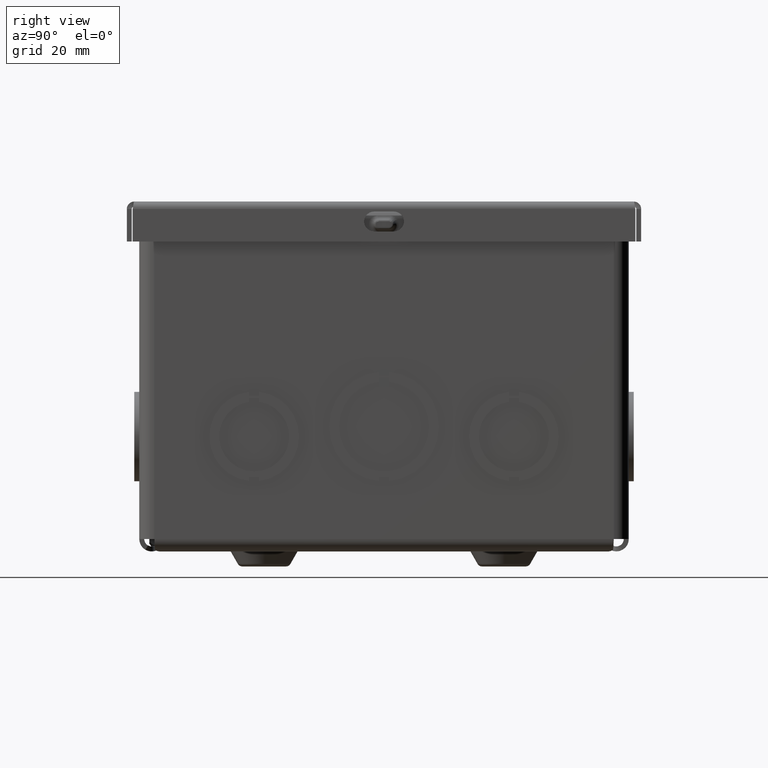
[diagram: clean part render]
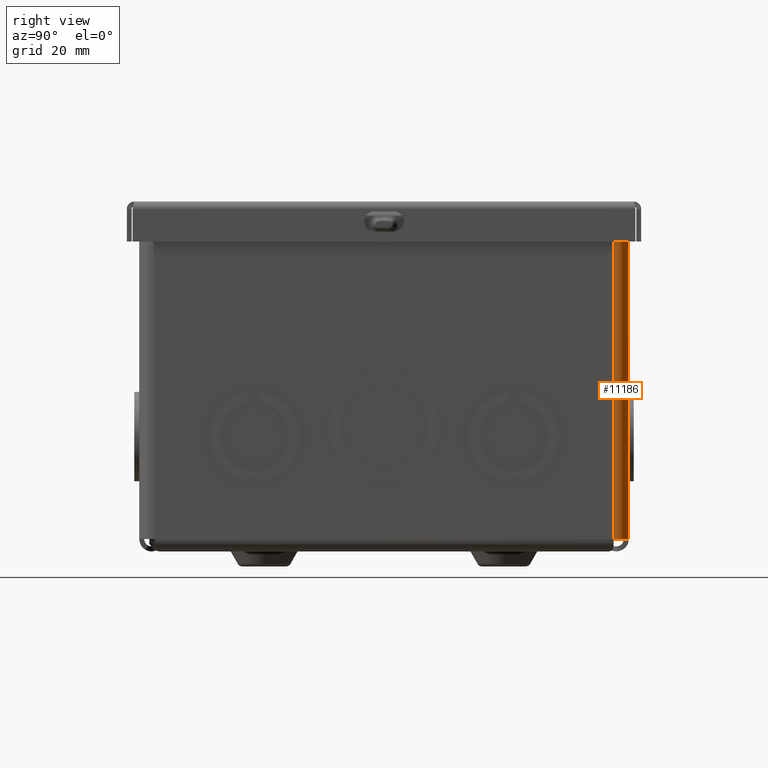
[diagram: same view with one face highlighted and labeled with its STEP entity id]
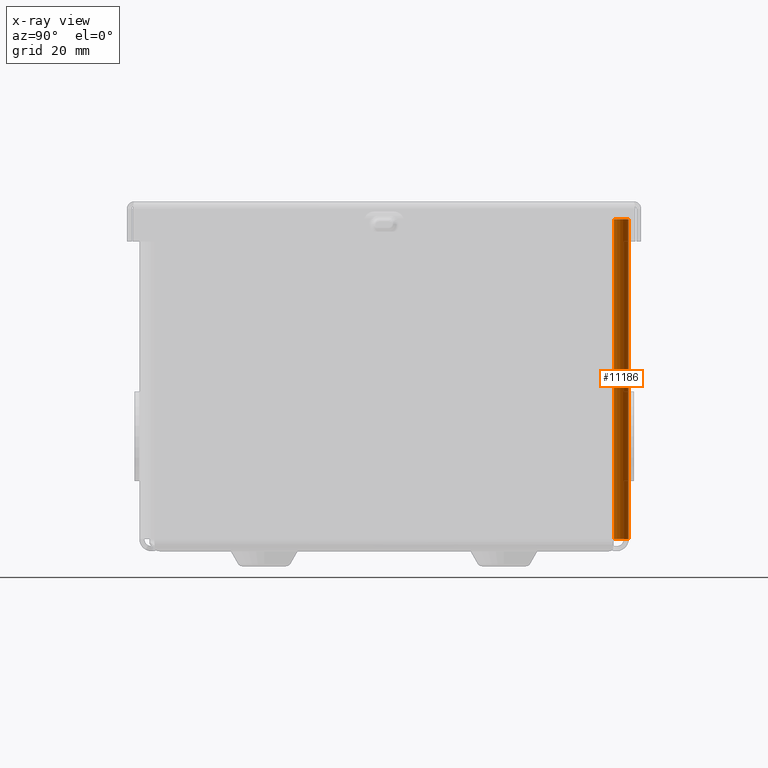
[diagram: x-ray of the same camera — body ghosted, the highlighted face saturated]
A machine part, right view. The second image highlights one B-rep face of the part: STEP entity #11186.
The next image is the same camera in x-ray: the body ghosted, the highlighted face saturated — about 0% of this face is hidden behind the body in this view.
In plain terms, the highlighted cylindrical surface (edge-blend (fillet) strip) has radius 4.7498 mm, axis along (0, -0, 1).
Its self-contained STEP definition (entity closure, byte-faithful):
#375=CYLINDRICAL_SURFACE($,#11953,0.186999999999957);
#487=LINE($,#15631,#1517);
#958=LINE($,#17585,#1988);
#1517=VECTOR($,#12667,4.0005);
#1988=VECTOR($,#13602,4.0005);
#3403=FACE_OUTER_BOUND($,#4123,.T.);
#4123=EDGE_LOOP($,(#8909,#8910,#8911,#8912));
#4561=CIRCLE($,#11948,0.187000000000001);
#4563=CIRCLE($,#11954,0.187);
#4789=VERTEX_POINT($,#15628);
#4790=VERTEX_POINT($,#15630);
#5191=VERTEX_POINT($,#17582);
#5192=VERTEX_POINT($,#17584);
#5741=EDGE_CURVE($,#4789,#4790,#487,.T.);
#6326=EDGE_CURVE($,#5191,#5192,#958,.T.);
#6531=EDGE_CURVE($,#5191,#4790,#4561,.T.);
#6533=EDGE_CURVE($,#4789,#5192,#4563,.T.);
#8909=ORIENTED_EDGE($,*,*,#6531,.T.);
#8910=ORIENTED_EDGE($,*,*,#5741,.F.);
#8911=ORIENTED_EDGE($,*,*,#6533,.T.);
#8912=ORIENTED_EDGE($,*,*,#6326,.F.);
#11186=ADVANCED_FACE($,(#3403),#375,.T.);
#11948=AXIS2_PLACEMENT_3D($,#18402,#13985,#13986);
#11953=AXIS2_PLACEMENT_3D($,#18407,#13995,#13996);
#11954=AXIS2_PLACEMENT_3D($,#18408,#13997,#13998);
#12667=DIRECTION($,(3.3256964762671E-016,-1.,3.34019384538771E-016));
#13602=DIRECTION($,(-3.3256964762671E-016,1.,-3.38323987985351E-016));
#13985=DIRECTION('center_axis',(-3.3256964762671E-016,1.,-3.34019384538771E-016));
#13986=DIRECTION('ref_axis',(-1.57813291497682E-015,-3.34019384538771E-016,
1.));
#13995=DIRECTION('center_axis',(3.3256964762671E-016,-1.,3.34019384538771E-016));
#13996=DIRECTION('ref_axis',(1.,3.32569647626712E-016,6.98117316244596E-015));
#13997=DIRECTION('center_axis',(3.3256964762671E-016,-1.,3.34019384538771E-016));
#13998=DIRECTION('ref_axis',(1.,3.34019384538771E-016,-5.80541186616638E-017));
#15628=CARTESIAN_POINT('',(1.93549999999999,2.09375,5.938));
#15630=CARTESIAN_POINT('',(1.93549999999999,-1.90675,5.938));
#15631=CARTESIAN_POINT($,(1.93549999999999,-1.046875,5.938));
#17582=CARTESIAN_POINT('',(1.74849999999999,-1.90675,6.125));
#17584=CARTESIAN_POINT('',(1.74849999999999,2.09375,6.125));
#17585=CARTESIAN_POINT($,(1.74849999999999,-1.01762400918579E-015,6.125));
#18402=CARTESIAN_POINT('Origin',(1.74849999999999,-1.90675,5.938));
#18407=CARTESIAN_POINT('Origin',(1.74849999999999,-1.64114601353568E-015,
5.938));
#18408=CARTESIAN_POINT('Origin',(1.74849999999999,2.09375,5.938));